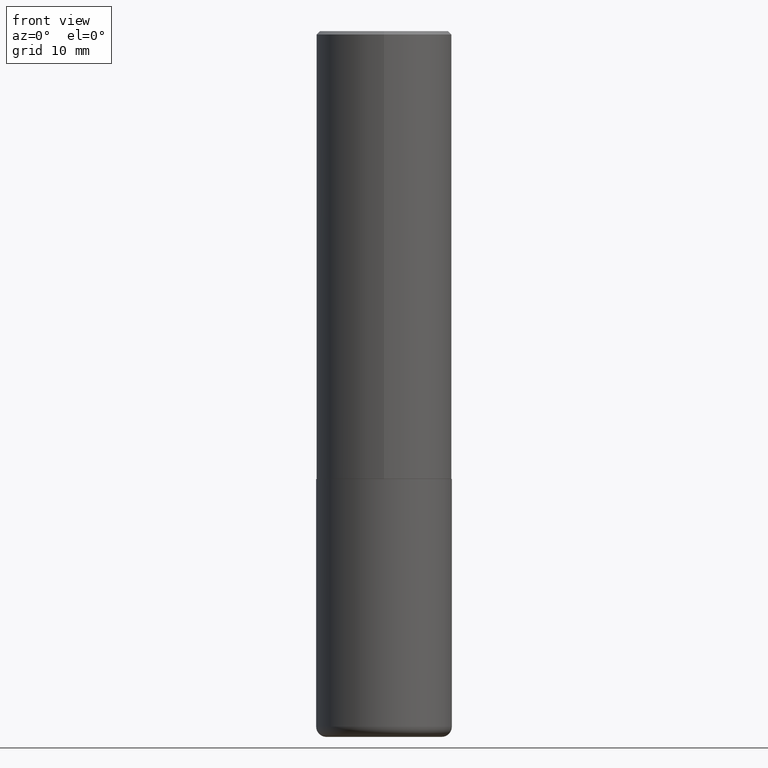
[diagram: clean part render]
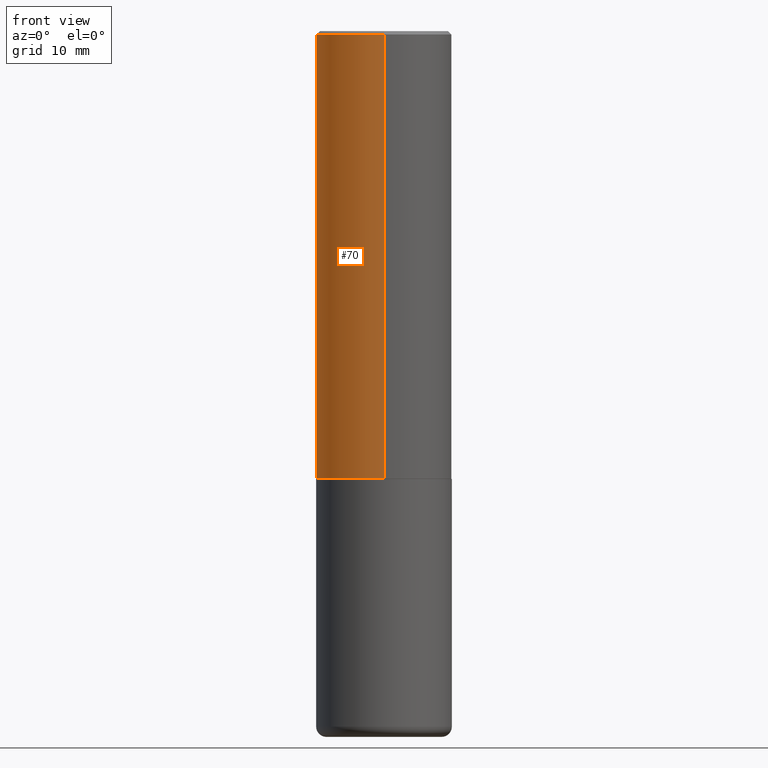
[diagram: same view with one face highlighted and labeled with its STEP entity id]
A machine part, front view. The second image highlights one B-rep face of the part: STEP entity #70.
In plain terms, the highlighted cylindrical surface (partial cylindrical patch) has radius 10 mm, axis along (-0, 0, 1).
Its self-contained STEP definition (entity closure, byte-faithful):
#9 = CARTESIAN_POINT ( 'NONE',  ( -2.700978061722650858E-15, -0.3937000000000000499, -0.01999999999999870978 ) ) ;
#15 = CARTESIAN_POINT ( 'NONE',  ( 6.351431425140834368E-29, -9.069388342870335822E-15, -2.597400000000000375 ) ) ;
#21 = EDGE_CURVE ( 'NONE', #269, #358, #180, .T. ) ;
#27 = DIRECTION ( 'NONE',  ( -6.982962677686265922E-15, -1.000000000000000000, 4.163344669033672479E-15 ) ) ;
#30 = AXIS2_PLACEMENT_3D ( 'NONE', #143, #371, #117 ) ;
#38 = ORIENTED_EDGE ( 'NONE', *, *, #229, .T. ) ;
#39 = VERTEX_POINT ( 'NONE', #9 ) ;
#45 = AXIS2_PLACEMENT_3D ( 'NONE', #15, #398, #27 ) ;
#52 = VECTOR ( 'NONE', #313, 39.37007874015748143 ) ;
#63 = EDGE_CURVE ( 'NONE', #358, #39, #142, .T. ) ;
#70 = ADVANCED_FACE ( 'NONE', ( #293 ), #327, .T. ) ;
#80 = CARTESIAN_POINT ( 'NONE',  ( 4.890607087965551148E-31, -6.983436007446194572E-17, -0.02000000000000008715 ) ) ;
#117 = DIRECTION ( 'NONE',  ( -6.982962677686265133E-15, -1.000000000000000000, 3.491718003723082520E-15 ) ) ;
#135 = ORIENTED_EDGE ( 'NONE', *, *, #144, .T. ) ;
#140 = DIRECTION ( 'NONE',  ( -6.982962677686265922E-15, -1.000000000000000000, 3.491137977679280212E-15 ) ) ;
#142 = CIRCLE ( 'NONE', #411, 0.3936999999999999389 ) ;
#143 = CARTESIAN_POINT ( 'NONE',  ( 0.000000000000000000, 0.000000000000000000, 0.000000000000000000 ) ) ;
#144 = EDGE_CURVE ( 'NONE', #376, #39, #321, .T. ) ;
#164 = CARTESIAN_POINT ( 'NONE',  ( 2.749192406205082822E-15, 0.3936999999999998834, -0.02000000000000146105 ) ) ;
#168 = CIRCLE ( 'NONE', #45, 0.3937000000000002720 ) ;
#180 = LINE ( 'NONE', #241, #304 ) ;
#203 = DIRECTION ( 'NONE',  ( -2.445303543982764697E-29, 3.491718003723082520E-15, 1.000000000000000000 ) ) ;
#223 = CARTESIAN_POINT ( 'NONE',  ( -2.749192406205083217E-15, -0.3937000000000001054, 1.374689378065777917E-15 ) ) ;
#229 = EDGE_CURVE ( 'NONE', #269, #376, #168, .T. ) ;
#241 = CARTESIAN_POINT ( 'NONE',  ( 2.797406750687514786E-15, 0.3937000000000001054, -1.374689378065777917E-15 ) ) ;
#269 = VERTEX_POINT ( 'NONE', #407 ) ;
#293 = FACE_OUTER_BOUND ( 'NONE', #382, .T. ) ;
#303 = DIRECTION ( 'NONE',  ( -2.445303543982764697E-29, 3.491718003723082520E-15, 1.000000000000000000 ) ) ;
#304 = VECTOR ( 'NONE', #303, 39.37007874015748143 ) ;
#313 = DIRECTION ( 'NONE',  ( -2.445303543982764697E-29, 3.491718003723082520E-15, 1.000000000000000000 ) ) ;
#320 = CARTESIAN_POINT ( 'NONE',  ( -2.749192406205021291E-15, -0.3937000000000093758, -2.597399999999999043 ) ) ;
#321 = LINE ( 'NONE', #223, #52 ) ;
#322 = ORIENTED_EDGE ( 'NONE', *, *, #63, .F. ) ;
#327 = CYLINDRICAL_SURFACE ( 'NONE', #30, 0.3937000000000001054 ) ;
#358 = VERTEX_POINT ( 'NONE', #164 ) ;
#371 = DIRECTION ( 'NONE',  ( -2.445303543982764697E-29, 3.491718003723082520E-15, 1.000000000000000000 ) ) ;
#376 = VERTEX_POINT ( 'NONE', #320 ) ;
#382 = EDGE_LOOP ( 'NONE', ( #384, #38, #135, #322 ) ) ;
#384 = ORIENTED_EDGE ( 'NONE', *, *, #21, .F. ) ;
#398 = DIRECTION ( 'NONE',  ( -2.445303543982764697E-29, 3.491718003723082520E-15, 1.000000000000000000 ) ) ;
#407 = CARTESIAN_POINT ( 'NONE',  ( 2.797406750687547919E-15, 0.3936999999999912792, -2.597400000000002152 ) ) ;
#411 = AXIS2_PLACEMENT_3D ( 'NONE', #80, #203, #140 ) ;